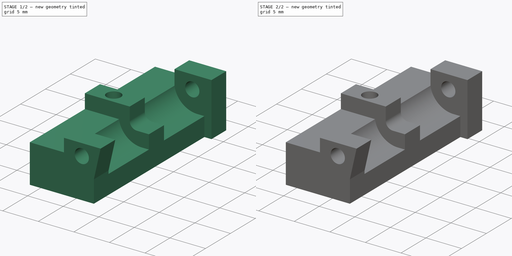
[diagram: build sequence overview — one tinted view per stage of 2, left to right]
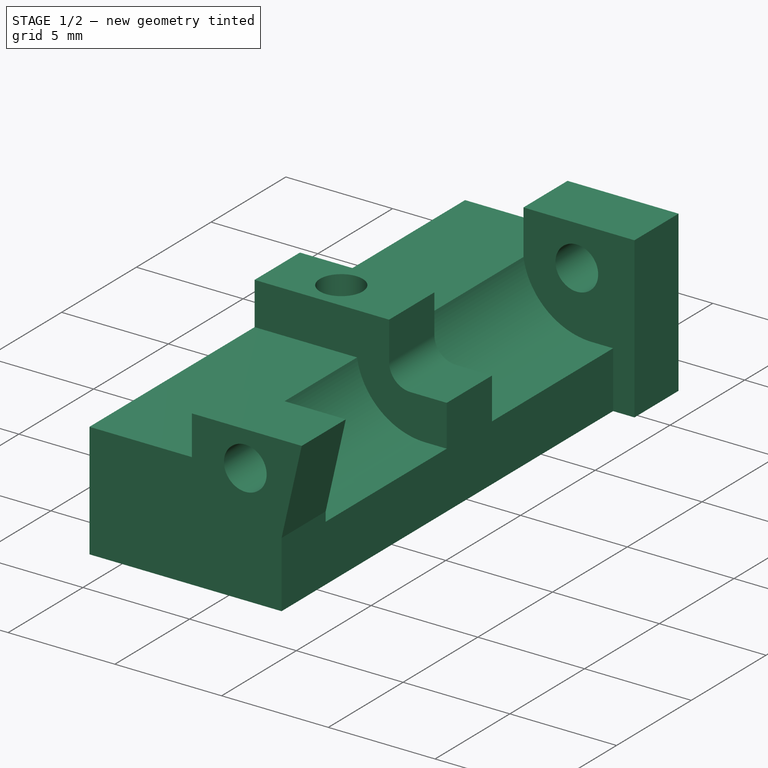
[diagram: stage 1 of 2 — iso view after this stage's code; geometry added in this stage tinted green]
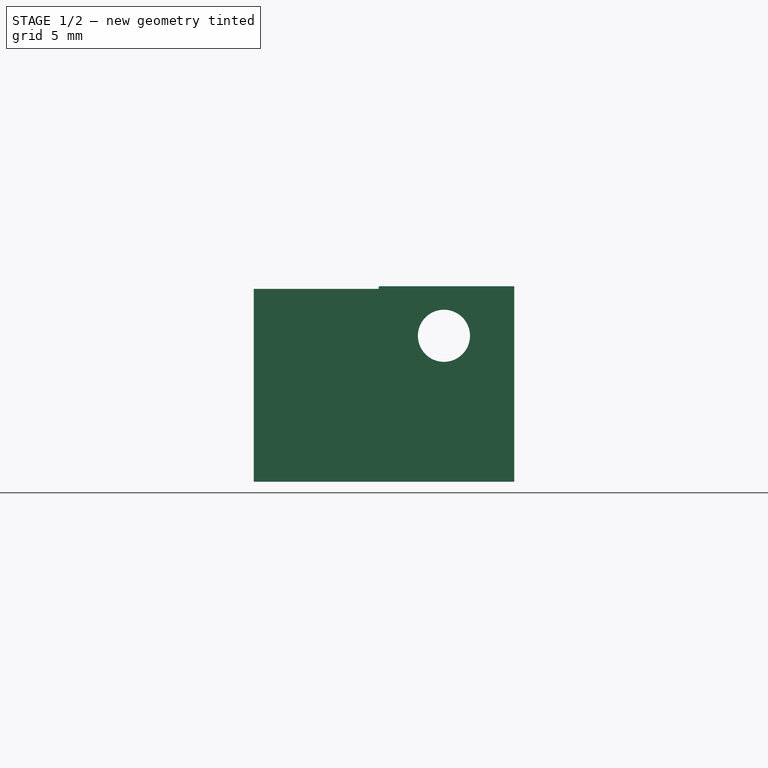
[diagram: stage 1 of 2 — front view after this stage's code; geometry added in this stage tinted green]
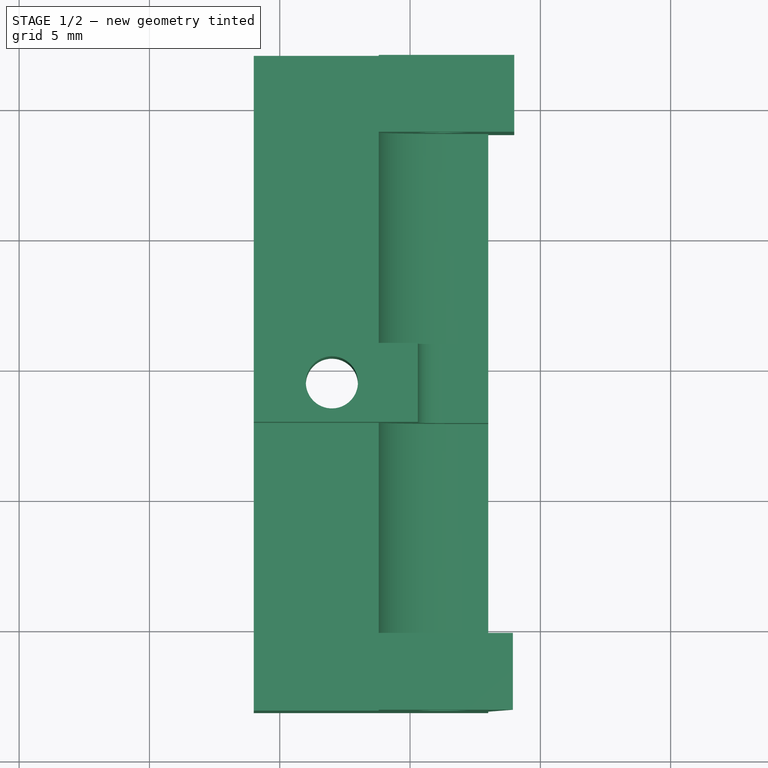
[diagram: stage 1 of 2 — top view after this stage's code; geometry added in this stage tinted green]
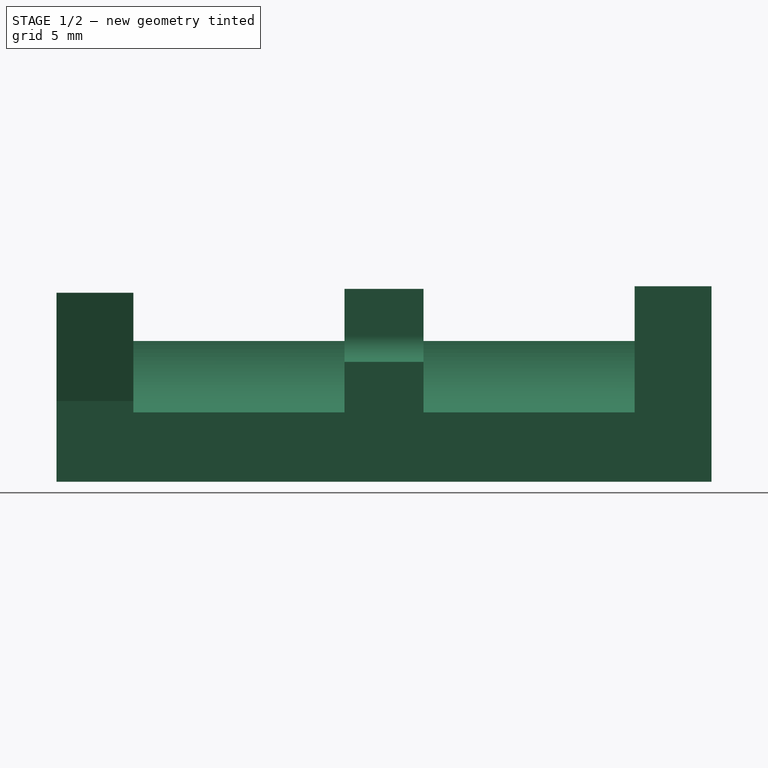
[diagram: stage 1 of 2 — right view after this stage's code; geometry added in this stage tinted green]
FCSTD DOCUMENT  (FreeCAD 1.0R38641 +468 (Git))
Label: k1_toolhead_right_clamp
License: All rights reserved
LicenseURL: https://en.wikipedia.org/wiki/All_rights_reserved
objects: PartDesign::Pocket×2, Part::Feature×1, PartDesign::FeatureBase×1, App::Link×1, Part::Part2DObjectPython×1, Sketcher::SketchObject×1, PartDesign::Body×1, App::Part×1
note: 13 computed .brp shape members not serialized (recipe doc carries the construction recipe); baked Part::Feature solids carry a one-line shape summary decoded from their .brp
EXTERNAL_REF file=cad_shaft_2_25mm.FCStd obj=Body

FEATURE [Part::Feature] Part__Feature  label="step"
  shape: bbox 10 x 25.13 x 7.5 mm, 30 faces (baked)
FEATURE [PartDesign::FeatureBase] BaseFeature
  BaseFeature = -> Part__Feature
  Suppressed = false
FEATURE [App::Link] Link  label="cad_shaft_2_25_link"
  LinkPlacement = pos=(17,2.00001,6) rot=(-1,0,0;1.5708rad)
  LinkedObject = -> <external cad_shaft_2_25mm.FCStd>#Body
  Placement = pos=(17,2.00001,6) rot=(-1,0,0;1.5708rad)
FEATURE [Part::Part2DObjectPython] ShapeString  # Draft 2D object (typed FeaturePython)
  FontFile = <path>
  Fuse = false
  Justification = 6
  JustificationReference = 0
  KeepLeftMargin = false
  MakeFace = true
  ObliqueAngle = 0
  Placement = pos=(15,19,0.4) rot=(0,-1,0;3.14159rad)
  ScaleToSize = true
  Size = 5
  String = R
  Tracking = 0
FEATURE [PartDesign::Pocket] Pocket
  BaseFeature = -> BaseFeature
  Direction = (-1e-16,1e-16,1)
  Length = 0.2
  Length2 = 5
  Profile = -> ShapeString
  ReferenceAxis = -> ShapeString [N_Axis]
  Refine = true
  Suppressed = false
  Type = 0
FEATURE [PartDesign::Body] Body  label="k1_toolhead_right_clamp"
  AllowCompound = false
  BaseFeature = -> Part__Feature
  Group = -> [BaseFeature,ShapeString,Pocket,Sketch,Pocket001]
  Origin = -> Origin
  Placement = pos=(0.6,8e-15,0) rot=(0,0,1;0rad)
  Tip = -> Pocket001
FEATURE [App::Part] Part  label="k1_toolhead_right_clamp_part"
  Group = -> [Part__Feature,Body,Link]
  Origin = -> Origin001
  Placement = pos=(0,0,0) rot=(0,0.707107,0.707107;3.14159rad)
note: 1 file-system path scrubbed to <path> (originals preserved in the JSON sidecar)

RESOLVED EXTERNAL PARTS (link-assembly join: the EXTERNAL_REF files above that resolve inside this repo's crawl, each included once):
---- part cad_shaft_2_25mm.FCStd = doc fcstd_2907fbea3804 ----
FCSTD DOCUMENT  (FreeCAD 1.0R38641 +468 (Git))
Label: cad_shaft_2_25mm
License: All rights reserved
LicenseURL: https://en.wikipedia.org/wiki/All_rights_reserved
objects: Part::Feature×1, PartDesign::FeatureBase×1, PartDesign::Body×1
note: 4 computed .brp shape members not serialized (recipe doc carries the construction recipe); baked Part::Feature solids carry a one-line shape summary decoded from their .brp

FEATURE [Part::Feature] Part__Feature  label="step"
  shape: bbox 2 x 2 x 25 mm, 3 faces (baked)
FEATURE [PartDesign::FeatureBase] BaseFeature
  BaseFeature = -> Part__Feature
  Suppressed = false
FEATURE [PartDesign::Body] Body  label="shaft_2_25mm"
  AllowCompound = false
  BaseFeature = -> Part__Feature
  Group = -> [BaseFeature]
  Origin = -> Origin
  Tip = -> BaseFeature
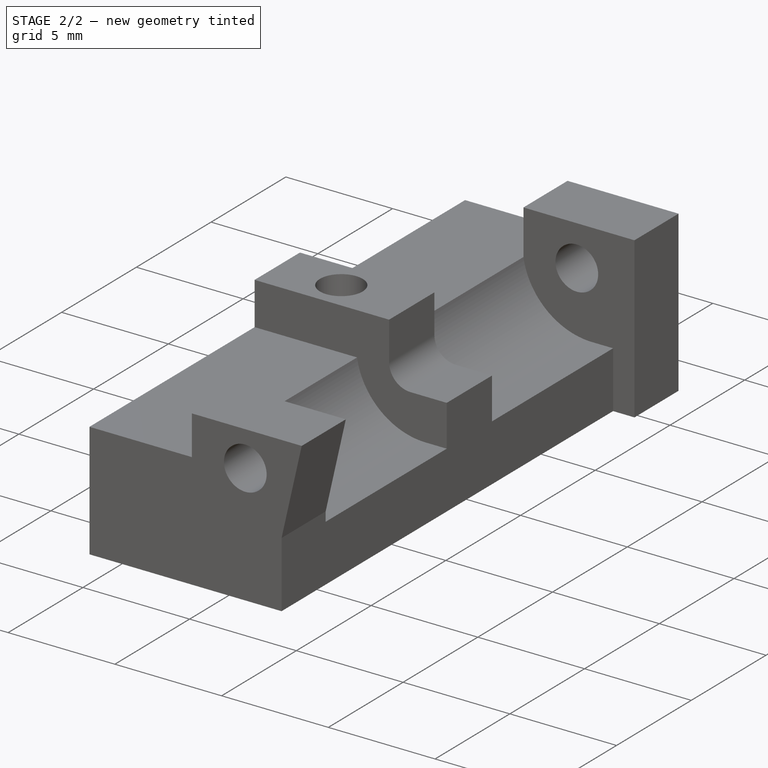
[diagram: stage 2 of 2 — iso view after this stage's code; geometry added in this stage tinted green]
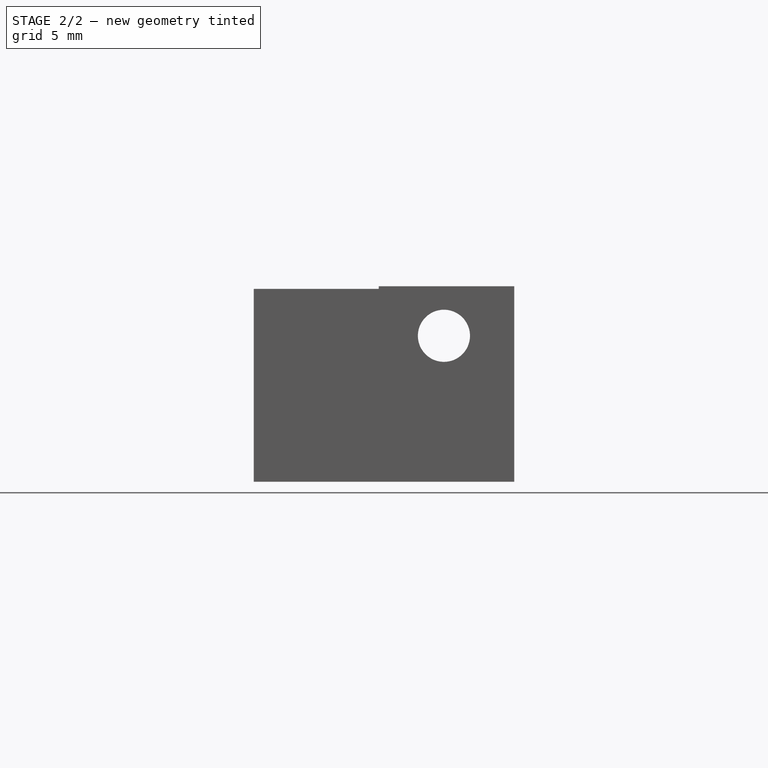
[diagram: stage 2 of 2 — front view after this stage's code; geometry added in this stage tinted green]
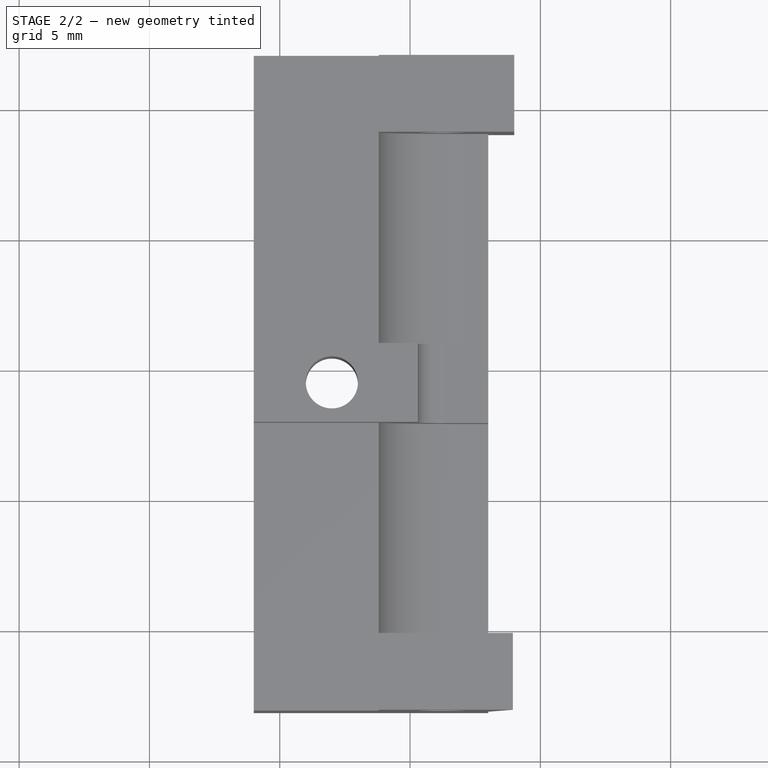
[diagram: stage 2 of 2 — top view after this stage's code; geometry added in this stage tinted green]
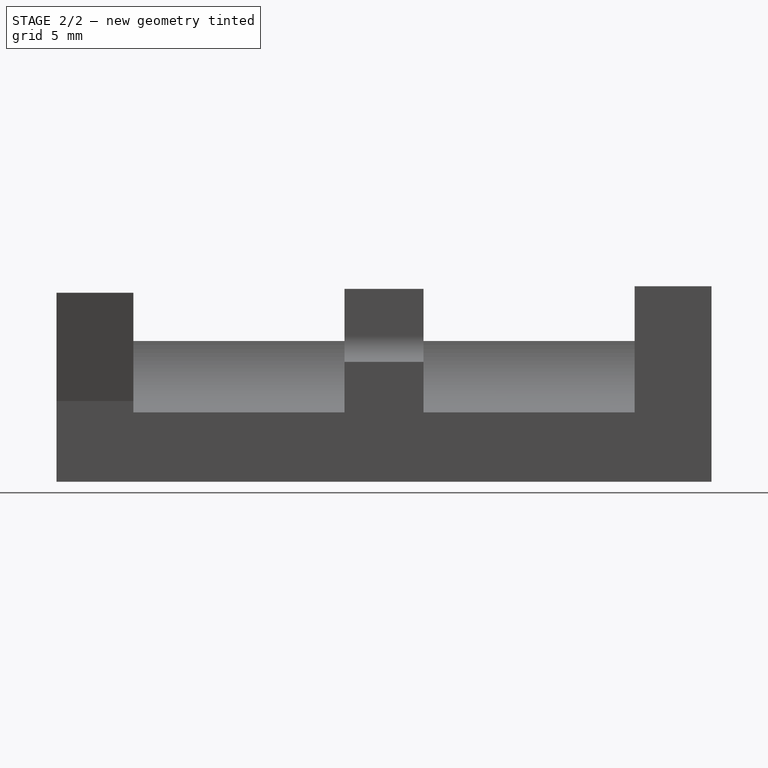
[diagram: stage 2 of 2 — right view after this stage's code; geometry added in this stage tinted green]
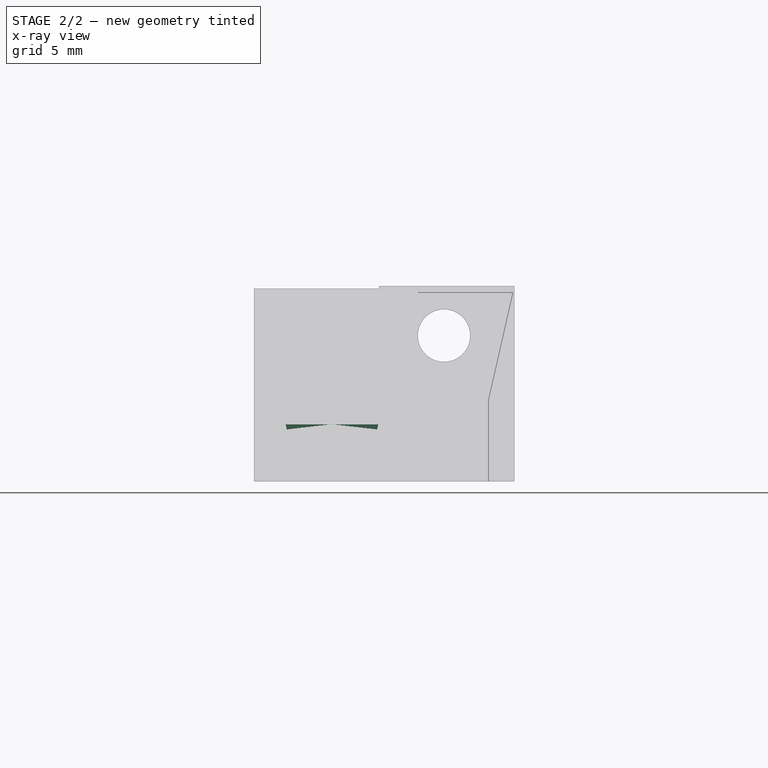
[diagram: stage 2 of 2 — x-ray composite at the front view; earlier geometry ghosted, this stage's added geometry solid]
FEATURE [Sketcher::SketchObject] Sketch
  ArcFitTolerance = 1e-06
  AttachmentSupport = -> [Pocket]
  ExternalGeometry = -> [Pocket]
  FullyConstrained = true
  MakeInternals = false
  MapMode = 5
  Placement = pos=(0,0,2.4) rot=(1,0,0;3.14159rad)
  sketch-geometry (4):
    g0: LineSegment StartX=10.2679 StartY=-13.435 StartZ=0 EndX=13.7321 EndY=-13.435 EndZ=0
    g1: LineSegment StartX=10.2679 StartY=-15.435 StartZ=0 EndX=13.7321 EndY=-15.435 EndZ=0
    g2: ArcOfCircle CenterX=12 CenterY=-14.435 CenterZ=0 NormalX=0 NormalY=0 NormalZ=1 AngleXU=0 Radius=2 StartAngle=2.61799 EndAngle=3.66519
    g3: ArcOfCircle CenterX=12 CenterY=-14.435 CenterZ=0 NormalX=0 NormalY=0 NormalZ=1 AngleXU=0 Radius=2 StartAngle=5.75959 EndAngle=6.80678
  constraints (14):
    c: Horizontal(g0)
    c: Horizontal(g1)
    c: Coincident(g2,g0)
    c: Coincident(g2,g1)
    c: Coincident(g3,g1)
    c: Tangent(g0,g-3)
    c: Tangent(g1,g-3)
    c: Equal(g1,g0)
    c: PointOnObject(g0,g-4)
    c: Coincident(g0,g3)
    c: PointOnObject(g0,g-4)
    c: PointOnObject(g1,g-4)
    c: Radius(g3) = 2
    c: Radius(g2) = 2
FEATURE [PartDesign::Pocket] Pocket001
  BaseFeature = -> Pocket
  Direction = (0,0,1)
  Length = 0.2
  Length2 = 5
  Profile = -> Sketch
  ReferenceAxis = -> Sketch [N_Axis]
  Refine = true
  Suppressed = false
  Type = 0
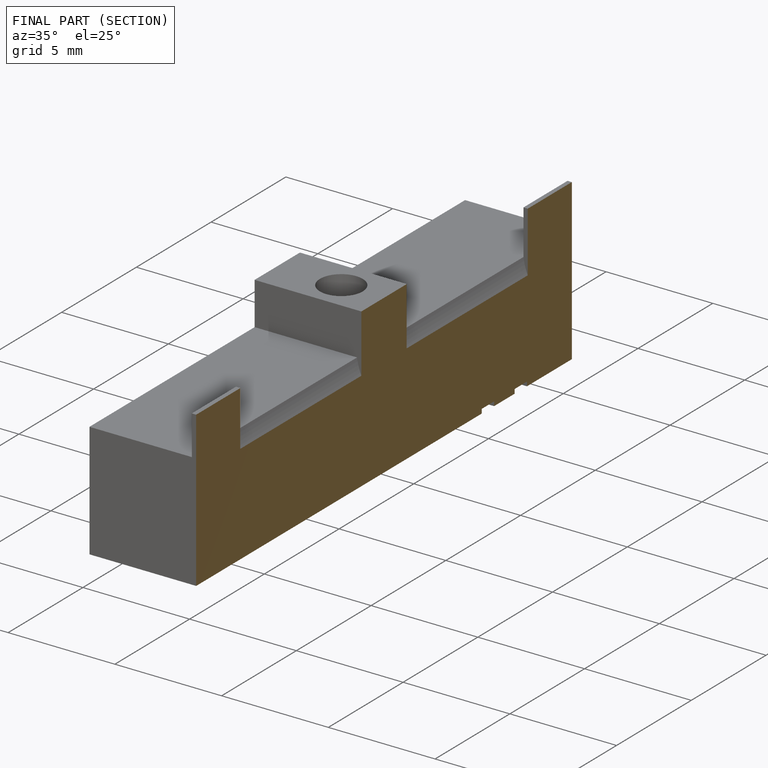
[diagram: finished part — half-section view (interior)]
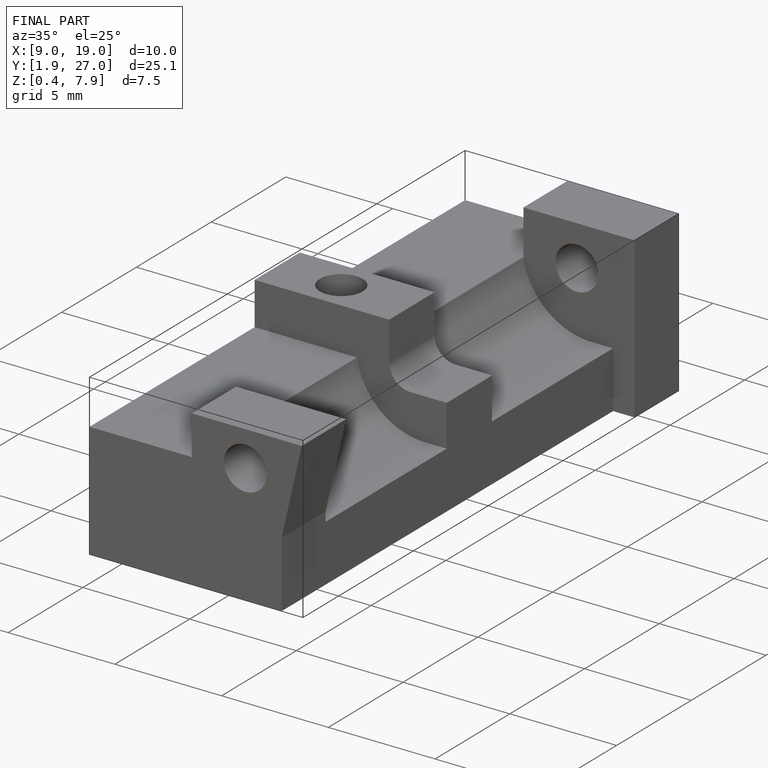
[diagram: finished part — iso view with bounding-box wireframe]
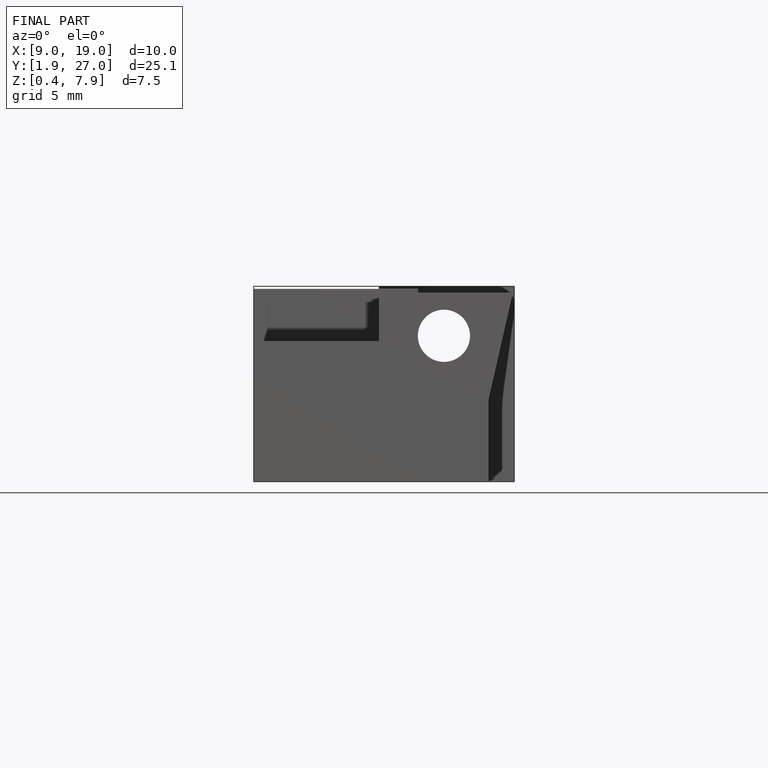
[diagram: finished part — front view with bounding-box wireframe]
